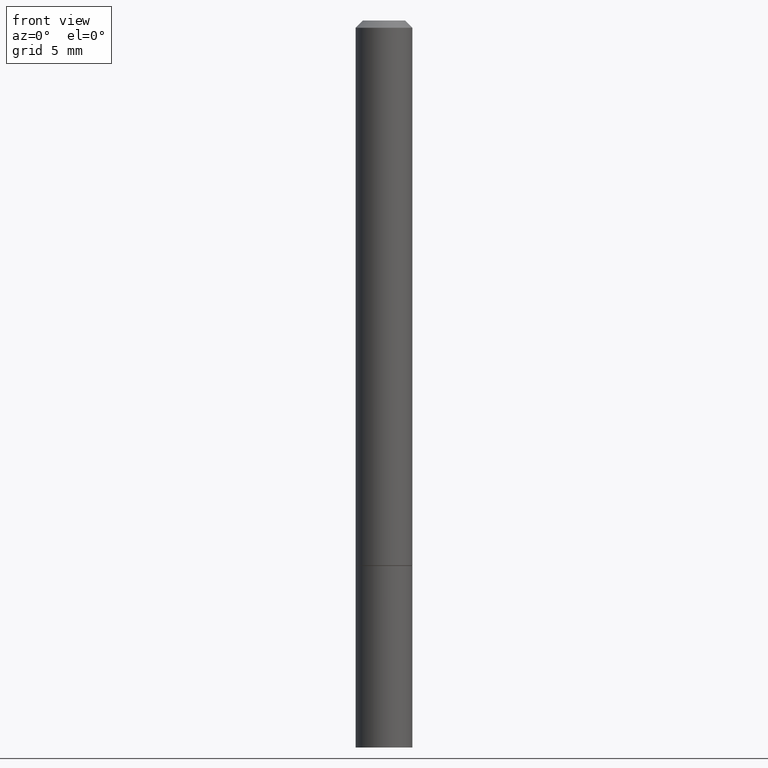
[diagram: clean part render]
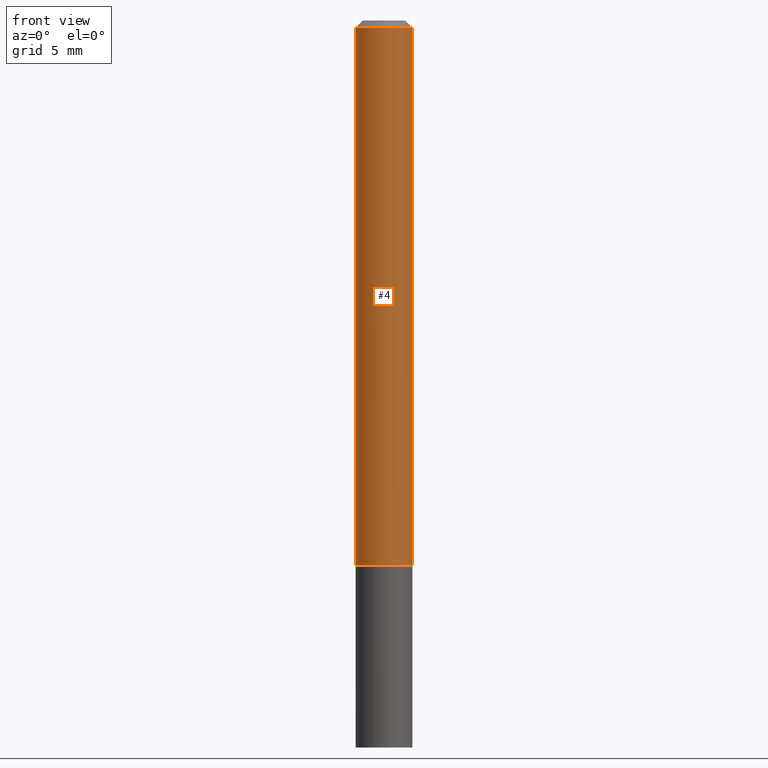
[diagram: same view with one face highlighted and labeled with its STEP entity id]
A machine part, front view. The second image highlights one B-rep face of the part: STEP entity #4.
In plain terms, the highlighted cylindrical surface (edge-blend (fillet) strip) has radius 1.9837 mm, axis along (-0, 0, 1).
Its self-contained STEP definition (entity closure, byte-faithful):
#4 = ADVANCED_FACE ( 'NONE', ( #373 ), #352, .T. ) ;
#15 = CARTESIAN_POINT ( 'NONE',  ( 3.665757740471518732E-29, -5.233730526925875170E-15, -1.498999999999999666 ) ) ;
#31 = CARTESIAN_POINT ( 'NONE',  ( 0.07809999999999980846, -6.056345204028183286E-16, -0.02000000000000001776 ) ) ;
#34 = AXIS2_PLACEMENT_3D ( 'NONE', #168, #111, #41 ) ;
#41 = DIRECTION ( 'NONE',  ( 1.000000000000000000, -6.982962677686267499E-15, 0.000000000000000000 ) ) ;
#42 = CARTESIAN_POINT ( 'NONE',  ( -0.07809999999999980846, 4.755397583504331521E-16, -0.02000000000000001776 ) ) ;
#51 = DIRECTION ( 'NONE',  ( -2.445468806185136597E-29, 3.491481338843145583E-15, 1.000000000000000000 ) ) ;
#53 = AXIS2_PLACEMENT_3D ( 'NONE', #371, #51, #169 ) ;
#66 = VECTOR ( 'NONE', #121, 39.37007874015748143 ) ;
#85 = VERTEX_POINT ( 'NONE', #363 ) ;
#91 = CARTESIAN_POINT ( 'NONE',  ( 0.07809999999999991949, -5.453693851272968448E-16, 3.808294061896621499E-30 ) ) ;
#108 = EDGE_CURVE ( 'NONE', #85, #376, #387, .T. ) ;
#111 = DIRECTION ( 'NONE',  ( -2.445468806185136597E-29, 3.491481338843145583E-15, 1.000000000000000000 ) ) ;
#121 = DIRECTION ( 'NONE',  ( -2.445468806185136877E-29, 3.491481338843145188E-15, 1.000000000000000000 ) ) ;
#134 = EDGE_LOOP ( 'NONE', ( #339, #218, #142, #262 ) ) ;
#135 = CARTESIAN_POINT ( 'NONE',  ( -0.07810000000000000275, -2.096846200222727419E-15, -1.498999999999999666 ) ) ;
#142 = ORIENTED_EDGE ( 'NONE', *, *, #108, .T. ) ;
#159 = DIRECTION ( 'NONE',  ( -2.445468806185136597E-29, 3.491481338843145583E-15, 1.000000000000000000 ) ) ;
#168 = CARTESIAN_POINT ( 'NONE',  ( 4.890937612370276662E-31, -6.982962677686296539E-17, -0.02000000000000001776 ) ) ;
#169 = DIRECTION ( 'NONE',  ( 1.000000000000000000, -6.982962677686266711E-15, 4.876176775795935232E-29 ) ) ;
#189 = CIRCLE ( 'NONE', #306, 0.07810000000000000275 ) ;
#196 = VECTOR ( 'NONE', #230, 39.37007874015748143 ) ;
#203 = VERTEX_POINT ( 'NONE', #42 ) ;
#215 = EDGE_CURVE ( 'NONE', #320, #203, #374, .T. ) ;
#218 = ORIENTED_EDGE ( 'NONE', *, *, #326, .T. ) ;
#227 = EDGE_CURVE ( 'NONE', #203, #376, #244, .T. ) ;
#230 = DIRECTION ( 'NONE',  ( -2.445468806185136877E-29, 3.491481338843145188E-15, 1.000000000000000000 ) ) ;
#244 = CIRCLE ( 'NONE', #34, 0.07809999999999980846 ) ;
#262 = ORIENTED_EDGE ( 'NONE', *, *, #227, .F. ) ;
#281 = DIRECTION ( 'NONE',  ( 1.000000000000000000, -6.982962677686266711E-15, 0.000000000000000000 ) ) ;
#282 = CARTESIAN_POINT ( 'NONE',  ( -0.07809999999999991949, 5.549338766286376731E-16, -3.841688305489077071E-30 ) ) ;
#306 = AXIS2_PLACEMENT_3D ( 'NONE', #15, #159, #281 ) ;
#320 = VERTEX_POINT ( 'NONE', #135 ) ;
#326 = EDGE_CURVE ( 'NONE', #320, #85, #189, .T. ) ;
#339 = ORIENTED_EDGE ( 'NONE', *, *, #215, .F. ) ;
#352 = CYLINDRICAL_SURFACE ( 'NONE', #53, 0.07809999999999991949 ) ;
#363 = CARTESIAN_POINT ( 'NONE',  ( 0.07810000000000000275, -5.779099912053172606E-15, -1.498999999999999666 ) ) ;
#371 = CARTESIAN_POINT ( 'NONE',  ( 0.000000000000000000, 0.000000000000000000, 0.000000000000000000 ) ) ;
#373 = FACE_OUTER_BOUND ( 'NONE', #134, .T. ) ;
#374 = LINE ( 'NONE', #282, #196 ) ;
#376 = VERTEX_POINT ( 'NONE', #31 ) ;
#387 = LINE ( 'NONE', #91, #66 ) ;